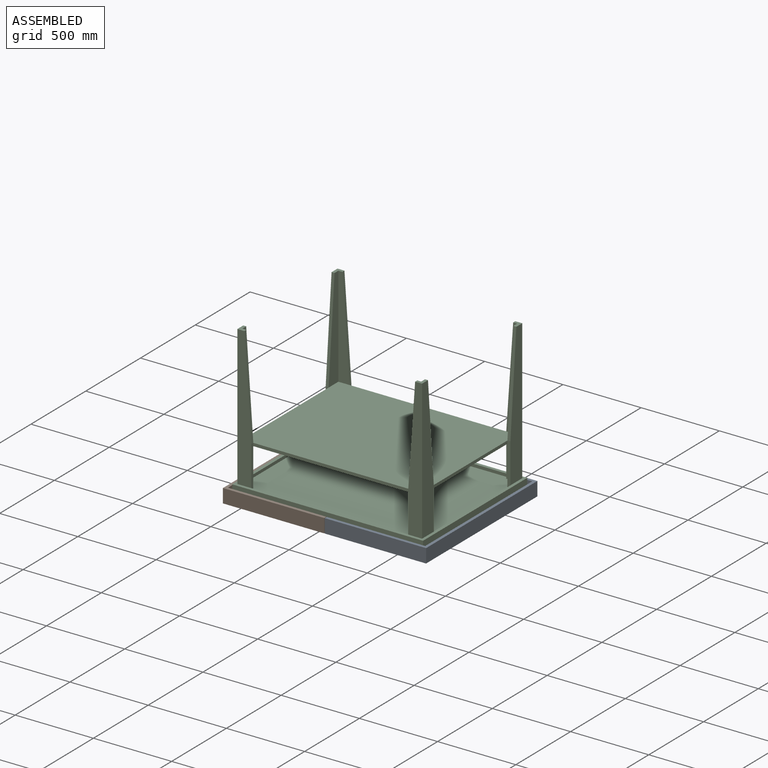
[diagram: assembled view]
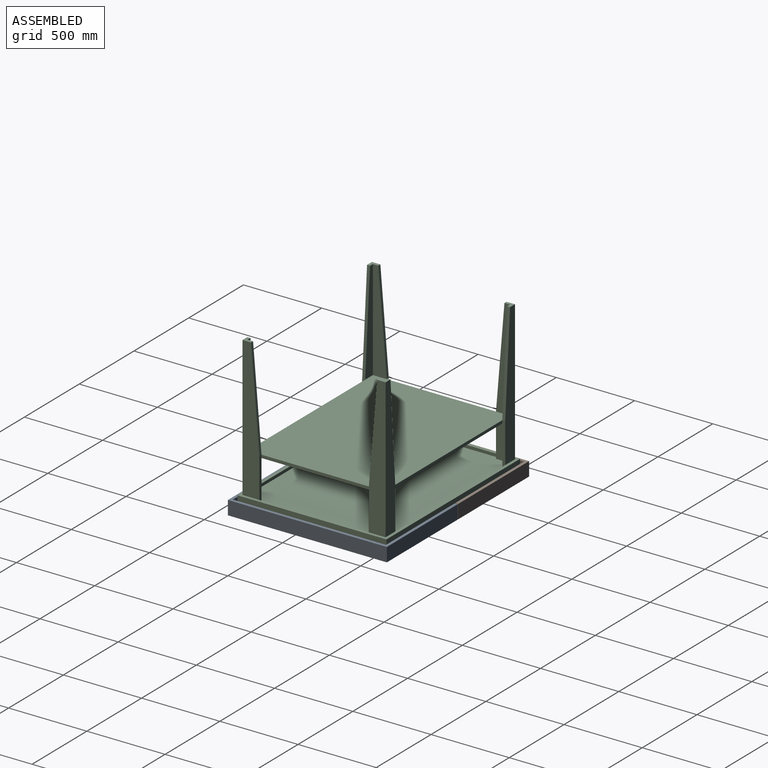
[diagram: assembled view, second angle]
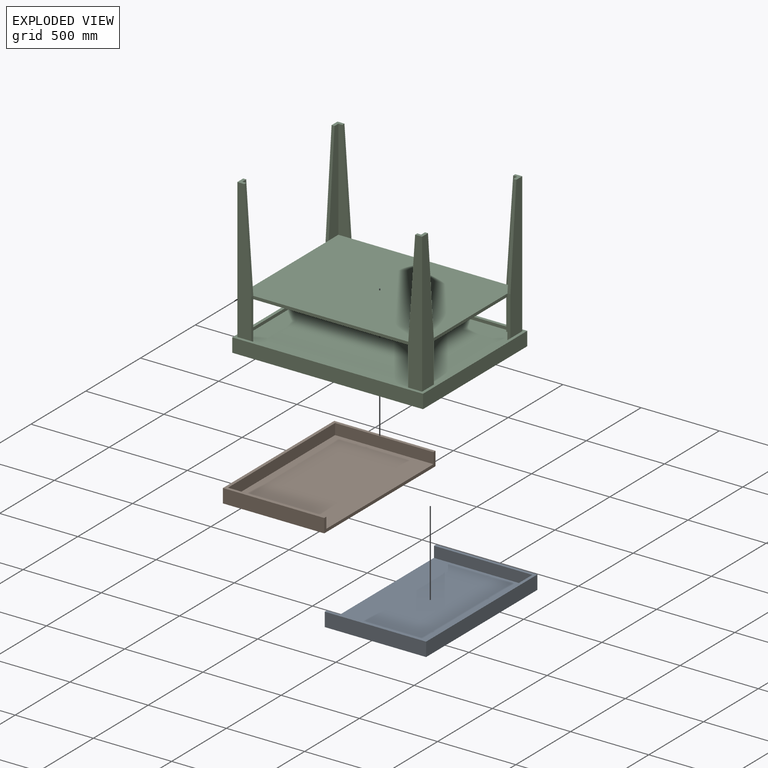
[diagram: exploded view]
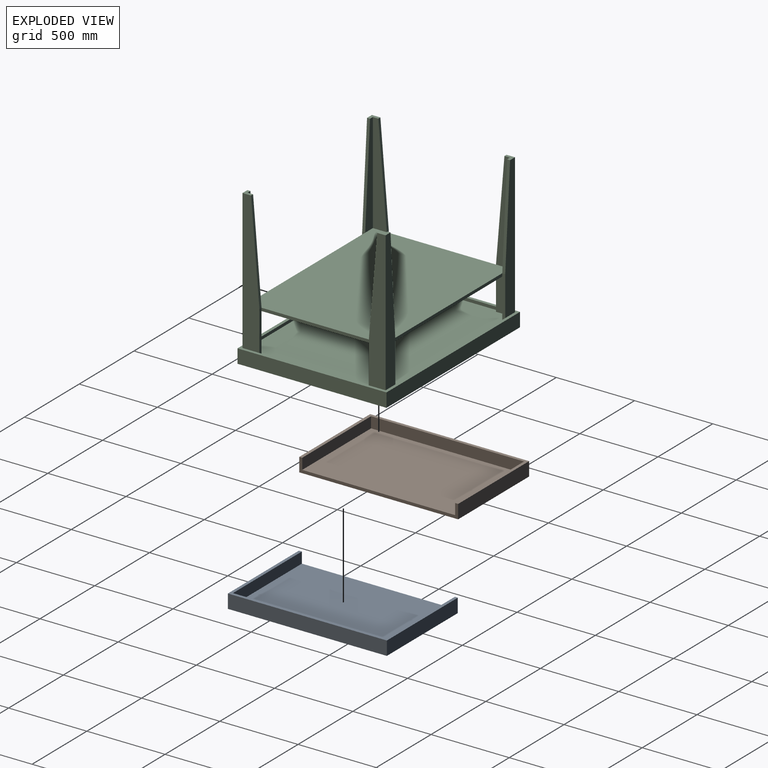
[diagram: exploded view, second angle]
ASSEMBLY  parts=3 mates=4
PART A: 10 faces, bbox 647.7x88.9x1016 mm
  f0: plane 1016x88.9mm, normal (-1,0,0), area 22016.1mm2, adj f1,f3,f4,f5,f6,f8,f9
  f1: plane 647.7x88.9mm, normal (0,0,-1), area 57580.5mm2, adj f0,f2,f5,f9
  f2: plane 1016x88.9mm, normal (1,0,0), area 90322.4mm2, adj f1,f3,f5,f9
  f3: plane 647.7x88.9mm, normal (0,0,1), area 57580.5mm2, adj f0,f2,f5,f9
  f4: plane 977.9x628.65mm, normal (0,-1,0), area 614756.8mm2, adj f0,f6,f7,f8
  f5: plane 1016x647.7mm, normal (0,1,0), area 658063.2mm2, adj f0,f1,f2,f3
  f6: plane 628.65x69.85mm, normal (0,0,-1), area 43911.2mm2, adj f0,f4,f7,f9
  f7: plane 977.9x69.85mm, normal (-1,0,0), area 68306.3mm2, adj f4,f6,f8,f9
  f8: plane 628.65x69.85mm, normal (0,0,1), area 43911.2mm2, adj f0,f4,f7,f9
  f9: plane 1016x647.7mm, normal (0,-1,0), area 43306.4mm2, adj f0,f1,f2,f3,f6,f7,f8
PART B: same geometry as A
PART C: 66 faces, bbox 1219.2x952.5x984.3 mm
  f0: plane 641.35x69.85mm, normal (0,-1,0), area 30544.3mm2, adj f2,f14,f59,f64
  f1: plane 641.35x69.85mm, normal (0,1,0), area 30544.3mm2, adj f11,f43,f58,f64
  f2: plane 641.35x88.9mm, normal (-1,0,0), area 39707.6mm2, adj f0,f14,f53,f64
  f3: plane 254x88.9mm, normal (-1,0,0), area 22580.6mm2, adj f15,f16,f23,f65
  f4: plane 254x69.85mm, normal (0,1,0), area 17741.9mm2, adj f5,f23,f47,f65
  f5: plane 254x88.9mm, normal (1,0,0), area 22580.6mm2, adj f4,f18,f23,f65
  f6: plane 641.35x88.9mm, normal (1,0,0), area 39707.6mm2, adj f50,f51,f52,f64
  f7: plane 254x69.85mm, normal (0,-1,0), area 17741.9mm2, adj f10,f23,f49,f65
  f8: plane 273.05x19.05mm, normal (-1,0,0), area 5201.6mm2, adj f12,f13,f23,f27,f59,f62
  f9: plane 895.35x88.9mm, normal (0,-1,0), area 65342.6mm2, adj f17,f19,f32,f47,f57
  f10: plane 273.05x19.05mm, normal (1,0,0), area 5201.6mm2, adj f7,f23,f27,f48,f56,f62
  f11: plane 53.98x44.45mm, normal (0,0,1), area 1512.1mm2, adj f1,f41,f42,f43,f55,f58
  f12: plane 895.35x88.9mm, normal (0,1,0), area 65342.6mm2, adj f8,f14,f32,f39,f59
  f13: plane 254x69.85mm, normal (0,-1,0), area 17741.9mm2, adj f8,f23,f40,f65
  f14: plane 53.98x44.45mm, normal (0,0,1), area 1512.1mm2, adj f0,f2,f12,f39,f53,f59
  f15: plane 254x69.85mm, normal (0,1,0), area 17741.9mm2, adj f3,f23,f44,f65
  f16: plane 273.05x19.05mm, normal (0,1,0), area 5201.6mm2, adj f3,f23,f26,f41,f55,f60
  f17: plane 895.35x107.95mm, normal (-1,0,0), area 79344.6mm2, adj f9,f18,f19,f32,f54
  f18: plane 273.05x19.05mm, normal (0,1,0), area 5201.6mm2, adj f5,f17,f23,f24,f54,f61
  f19: plane 53.98x44.45mm, normal (0,0,1), area 1512.1mm2, adj f9,f17,f45,f46,f54,f57
  f20: plane 273.05x19.05mm, normal (0,-1,0), area 5201.6mm2, adj f23,f26,f39,f40,f53,f60
  f21: plane 895.35x107.95mm, normal (-1,0,0), area 79344.6mm2, adj f22,f32,f48,f51,f52
  f22: plane 273.05x19.05mm, normal (0,-1,0), area 5201.6mm2, adj f21,f23,f24,f49,f52,f61
  f23: plane 1181.1x914.4mm, normal (0,0,1), area 1066449.5mm2, adj f3,f4,f5,f7,f8,f10,f13,f15
  f24: plane 698.5x19.05mm, normal (1,0,0), area 13306.4mm2, adj f18,f22,f23,f32
  f25: plane 1003.3x19.05mm, normal (0,1,0), area 19112.9mm2, adj f23,f32,f44,f47
  f26: plane 698.5x19.05mm, normal (-1,0,0), area 13306.4mm2, adj f16,f20,f23,f32
  f27: plane 1003.3x19.05mm, normal (0,-1,0), area 19112.9mm2, adj f8,f10,f23,f32
  f28: plane 1219.2x88.9mm, normal (0,1,0), area 108386.9mm2, adj f29,f31,f32,f37
  f29: plane 952.5x88.9mm, normal (1,0,0), area 84677.3mm2, adj f28,f30,f32,f37
  f30: plane 1219.2x88.9mm, normal (0,-1,0), area 108386.9mm2, adj f29,f31,f32,f37
  f31: plane 952.5x88.9mm, normal (-1,0,0), area 84677.3mm2, adj f28,f30,f32,f37
  f32: plane 1219.2x952.5mm, normal (0,0,1), area 81290.2mm2, adj f9,f12,f17,f21,f24,f25,f26,f27
  f33: plane 914.4x50.8mm, normal (1,0,0), area 46451.5mm2, adj f34,f36,f37,f38
  f34: plane 1181.1x50.8mm, normal (0,1,0), area 59999.9mm2, adj f33,f35,f37,f38
  f35: plane 914.4x50.8mm, normal (-1,0,0), area 46451.5mm2, adj f34,f36,f37,f38
  f36: plane 1181.1x50.8mm, normal (0,-1,0), area 59999.9mm2, adj f33,f35,f37,f38
  f37: plane 1219.2x952.5mm, normal (0,0,-1), area 81290.2mm2, adj f28,f29,f30,f31,f33,f34,f35,f36
  f38: plane 1181.1x914.4mm, normal (0,0,-1), area 1079997.8mm2, adj f33,f34,f35,f36
  f39: plane 895.35x107.95mm, normal (1,0,0), area 79344.6mm2, adj f12,f14,f20,f32,f53
  f40: plane 254x88.9mm, normal (-1,0,0), area 22580.6mm2, adj f13,f20,f23,f65
  f41: plane 895.35x107.95mm, normal (1,0,0), area 79344.6mm2, adj f11,f16,f32,f42,f55
  f42: plane 895.35x88.9mm, normal (0,-1,0), area 65342.6mm2, adj f11,f32,f41,f44,f58
  f43: plane 641.35x88.9mm, normal (-1,0,0), area 39707.6mm2, adj f1,f11,f55,f64
  f44: plane 273.05x19.05mm, normal (-1,0,0), area 5201.6mm2, adj f15,f23,f25,f42,f58,f63
  f45: plane 641.35x69.85mm, normal (0,1,0), area 30544.3mm2, adj f19,f46,f57,f64
  f46: plane 641.35x88.9mm, normal (1,0,0), area 39707.6mm2, adj f19,f45,f54,f64
  f47: plane 273.05x19.05mm, normal (1,0,0), area 5201.6mm2, adj f4,f9,f23,f25,f57,f63
  f48: plane 895.35x88.9mm, normal (0,1,0), area 65342.6mm2, adj f10,f21,f32,f51,f56
  f49: plane 254x88.9mm, normal (1,0,0), area 22580.6mm2, adj f7,f22,f23,f65
  f50: plane 641.35x69.85mm, normal (0,-1,0), area 30544.3mm2, adj f6,f51,f56,f64
  f51: plane 53.98x44.45mm, normal (0,0,1), area 1512.1mm2, adj f6,f21,f48,f50,f52,f56
  f52: plane 641.35x53.98mm, normal (0,-1,0.08), area 12260.9mm2, adj f6,f21,f22,f51
  f53: plane 641.35x53.98mm, normal (0,-1,0.08), area 12260.9mm2, adj f2,f14,f20,f39
  f54: plane 641.35x53.98mm, normal (0,1,0.08), area 12260.9mm2, adj f17,f18,f19,f46
  f55: plane 641.35x53.98mm, normal (0,1,0.08), area 12260.9mm2, adj f11,f16,f41,f43
  f56: plane 641.35x44.45mm, normal (1,0,0.07), area 12247mm2, adj f10,f48,f50,f51
  f57: plane 641.35x44.45mm, normal (1,0,0.07), area 12247mm2, adj f9,f19,f45,f47
  f58: plane 641.35x44.45mm, normal (-1,0,0.07), area 12247mm2, adj f1,f11,f42,f44
  f59: plane 641.35x44.45mm, normal (-1,0,0.07), area 12247mm2, adj f0,f8,f12,f14
  f60: plane 698.5x19.05mm, normal (1,0,0), area 13306.4mm2, adj f16,f20,f64,f65
  f61: plane 698.5x19.05mm, normal (-1,0,0), area 13306.4mm2, adj f18,f22,f64,f65
  f62: plane 1003.3x19.05mm, normal (0,1,0), area 19112.9mm2, adj f8,f10,f64,f65
  f63: plane 1003.3x19.05mm, normal (0,-1,0), area 19112.9mm2, adj f44,f47,f64,f65
  f64: plane 1143x876.3mm, normal (0,0,1), area 1001610.9mm2, adj f0,f1,f2,f6,f43,f45,f46,f50
  f65: plane 1143x876.3mm, normal (0,0,-1), area 1001610.9mm2, adj f3,f4,f5,f7,f13,f15,f40,f49
PLACE A rot(axis=(-1,0,0),90deg) t=(-1261.58,-228.12,35.7)mm
PLACE B rot(axis=(0,0.71,-0.71),180deg) t=(-1264.9,787.88,35.7)mm
PLACE C t=(-1265.6,279.88,105.55)mm fixed
MATE parallel C.f28 <-> B.f8  axis (0,1,0) through (-1265.6,756.13,99.2)mm
MATE planar B.f4 <-> C.f37  axis (0,0,1) through (-1579.23,279.88,54.75)mm
MATE planar A.f4 <-> C.f37  axis (0,0,1) through (-947.25,768.83,54.75)mm
MATE planar B.f1 <-> A.f3  axis (0,1,0) through (-1588.75,787.88,80.15)mm
